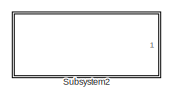
[diagram: root canvas - part 1/2, top right region]
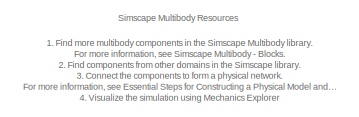
[diagram: root canvas - part 2/2, bottom left region]
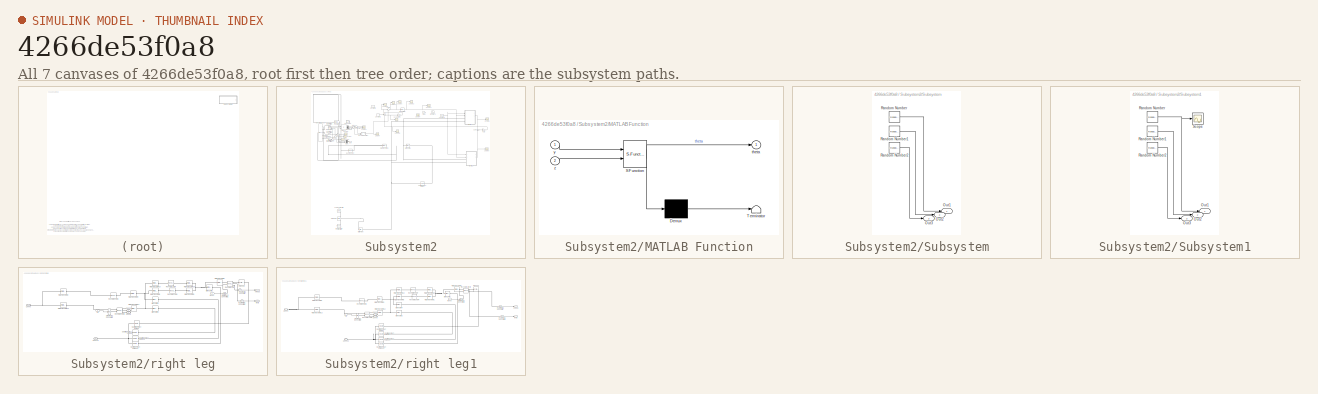
[diagram: thumbnail index - all 7 canvases of the model, root first then tree order]
MODEL slx_4266de53f0a8
KIND model
CONFIG AbsTol = 1e-3
CONFIG EnableMultiTasking = on
CONFIG FixedStep = auto
CONFIG MaxStep = auto
CONFIG MinStep = auto
CONFIG RelTol = 1e-3
CONFIG SampleTimeConstraint = Unconstrained
CONFIG SolverName = VariableStepAuto
CONFIG StartTime = 0.0
CONFIG StopTime = 5
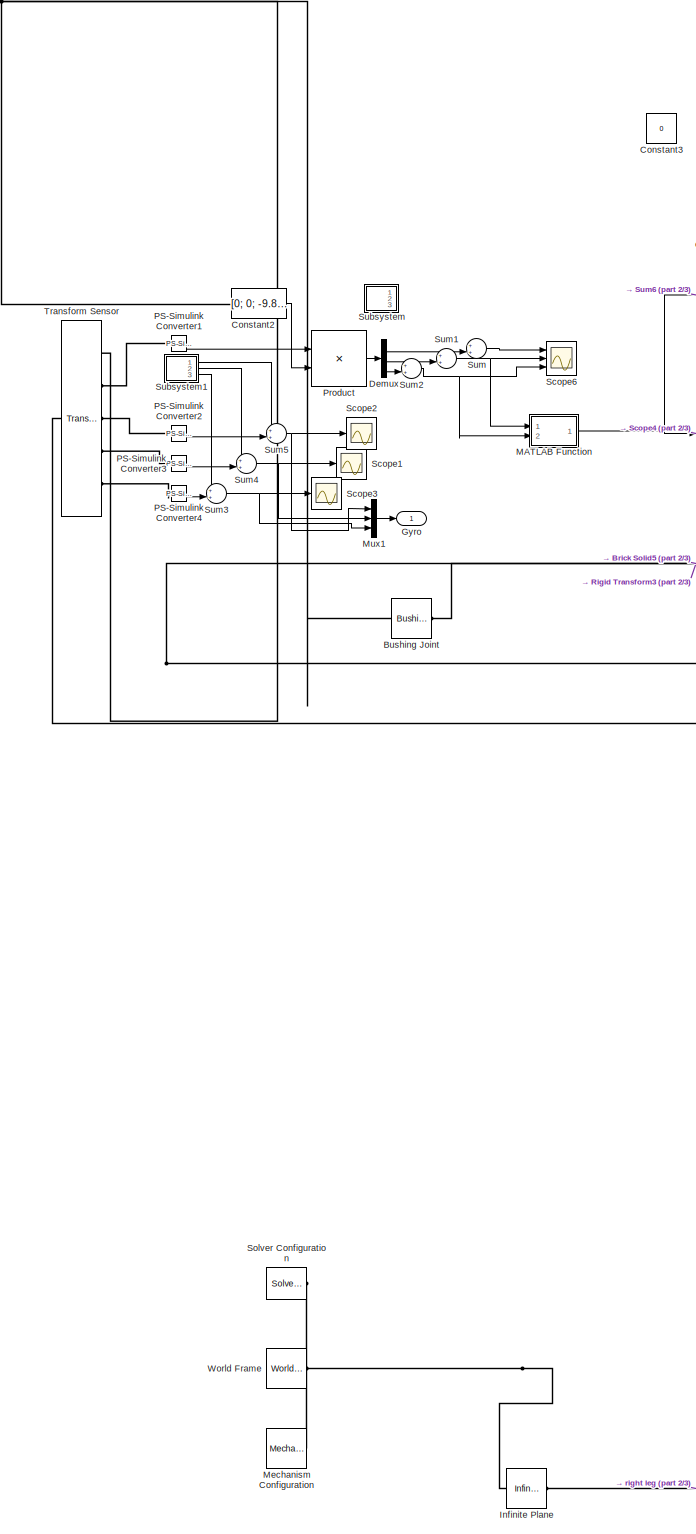
[diagram: Subsystem2 - part 1/3, left side, full height]
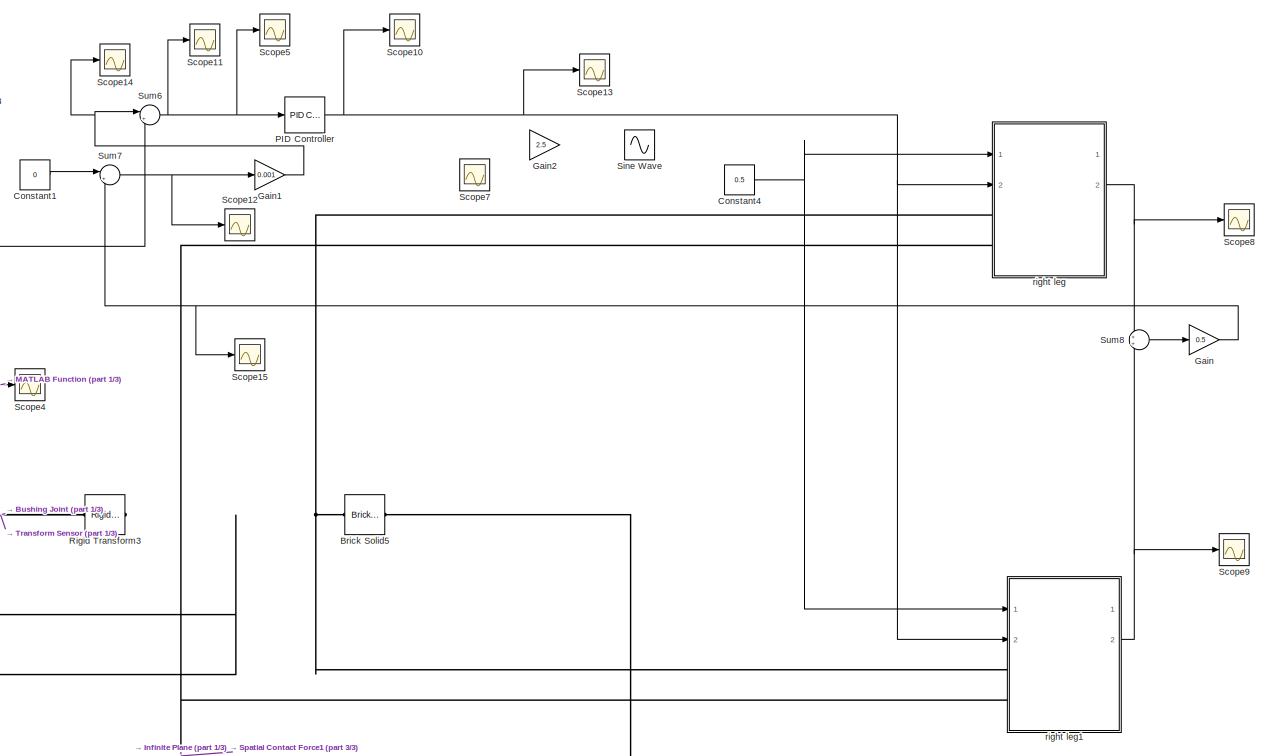
[diagram: Subsystem2 - part 2/3, top right region]
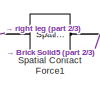
[diagram: Subsystem2 - part 3/3, central region]
BLOCK [SubSystem] Subsystem2
  Ports = [0, 1]
  RequestExecContextInheritance = off
BLOCK [Reference] Subsystem2/Brick Solid5  REF=sm_lib/Body Elements/Brick Solid
  NameLocation = top
  Ports = [0, 0, 0, 0, 0, 1, 1]
  SourceBlock = sm_lib/Body Elements/Brick Solid
  SourceProductBaseCode = MS
  SourceType = Brick Solid
BLOCK [Reference] Subsystem2/Bushing Joint  REF=sm_lib/Joints/Bushing Joint
  Ports = [0, 0, 0, 0, 0, 1, 1]
  SourceBlock = sm_lib/Joints/Bushing Joint
  SourceProductBaseCode = MS
  SourceType = Bushing Joint
BLOCK [Constant] Subsystem2/Constant1
  Value = 0
BLOCK [Constant] Subsystem2/Constant2
  Value = [0; 0; -9.80665]
  VectorParams1D = off
BLOCK [Constant] Subsystem2/Constant3
  Value = 0
BLOCK [Constant] Subsystem2/Constant4
  Value = 0.5
BLOCK [Demux] Subsystem2/Demux
  Outputs = 3
  Ports = [1, 3]
BLOCK [Gain] Subsystem2/Gain
  Gain = 0.5
BLOCK [Gain] Subsystem2/Gain1
  Gain = 0.001
BLOCK [Gain] Subsystem2/Gain2
  Gain = 2.5
BLOCK [Outport] Subsystem2/Gyro
BLOCK [Reference] Subsystem2/Infinite Plane  REF=sm_lib/Curves and Surfaces/Infinite Plane
  Ports = [0, 0, 0, 0, 0, 1, 1]
  SourceBlock = sm_lib/Curves and Surfaces/Infinite Plane
  SourceProductBaseCode = MS
  SourceType = Infinite Plane
BLOCK [SubSystem] Subsystem2/MATLAB Function
  ErrorFcn = Stateflow.Translate.translate
  PermitHierarchicalResolution = ExplicitOnly
  Ports = [2, 1]
  RequestExecContextInheritance = off
  SFBlockType = MATLAB Function
  TreatAsAtomicUnit = on
BLOCK [Demux] Subsystem2/MATLAB Function/ Demux 
  Outputs = 1
  Ports = [1, 1]
BLOCK [S-Function] Subsystem2/MATLAB Function/ SFunction 
  EnableBusSupport = on
  FunctionName = sf_sfun
  PortCounts = [2 2]
  Ports = [2, 2]
  SFcnIsStateOwnerBlock = off
  SFunctionDeploymentMode = off
  Tag = Stateflow S-Function 2
BLOCK [Terminator] Subsystem2/MATLAB Function/ Terminator 
BLOCK [Outport] Subsystem2/MATLAB Function/theta
BLOCK [Inport] Subsystem2/MATLAB Function/y
BLOCK [Inport] Subsystem2/MATLAB Function/z
  Port = 2
BLOCK [Reference] Subsystem2/Mechanism Configuration  REF=sm_lib/Utilities/Mechanism
Configuration
  Ports = [0, 0, 0, 0, 0, 0, 1]
  SourceBlock = sm_lib/Utilities/Mechanism\nConfiguration
  SourceProductName = Multibody
  SourceType = Mechanism\nConfiguration
BLOCK [Mux] Subsystem2/Mux1
  DisplayOption = bar
  Inputs = 3
  Ports = [3, 1]
BLOCK [Reference] Subsystem2/PID Controller  REF=slpidlib/PID Controller
  Ports = [1, 1]
  SourceBlock = slpidlib/PID Controller
  SourceProductBaseCode = SL
  SourceType = PID 1dof
BLOCK [Reference] Subsystem2/PS-Simulink Converter1  REF=nesl_utility/PS-Simulink
Converter
  Ports = [0, 1, 0, 0, 0, 1]
  SourceBlock = nesl_utility/PS-Simulink\nConverter
  SourceProductBaseCode = PW,SS
  SourceType = PS-Simulink\nConverter
BLOCK [Reference] Subsystem2/PS-Simulink Converter2  REF=nesl_utility/PS-Simulink
Converter
  Ports = [0, 1, 0, 0, 0, 1]
  SourceBlock = nesl_utility/PS-Simulink\nConverter
  SourceProductBaseCode = PW,SS
  SourceType = PS-Simulink\nConverter
BLOCK [Reference] Subsystem2/PS-Simulink Converter3  REF=nesl_utility/PS-Simulink
Converter
  Ports = [0, 1, 0, 0, 0, 1]
  SourceBlock = nesl_utility/PS-Simulink\nConverter
  SourceProductBaseCode = PW,SS
  SourceType = PS-Simulink\nConverter
BLOCK [Reference] Subsystem2/PS-Simulink Converter4  REF=nesl_utility/PS-Simulink
Converter
  Ports = [0, 1, 0, 0, 0, 1]
  SourceBlock = nesl_utility/PS-Simulink\nConverter
  SourceProductBaseCode = PW,SS
  SourceType = PS-Simulink\nConverter
BLOCK [Product] Subsystem2/Product
  Multiplication = Matrix(*)
  Ports = [2, 1]
BLOCK [Reference] Subsystem2/Rigid Transform3  REF=sm_lib/Frames and
Transforms/Rigid
Transform
  Ports = [0, 0, 0, 0, 0, 1, 1]
  SourceBlock = sm_lib/Frames and\nTransforms/Rigid\nTransform
  SourceProductName = Multibody
  SourceType = Rigid\nTransform
BLOCK [Scope] Subsystem2/Scope1
  Floating = off
  NumInputPorts = 1
  Ports = [1]
  ScopeSpecificationString = Simulink.scopes.TimeScopeBlockCfg('CurrentConfiguration', extmgr.ConfigurationSet(extmgr.Configuration('Core','General UI',true),extmgr.Configuration('Core','Source UI',true),extmgr.Configuration('Sources','WiredSimulink',true),extmgr.Configuration('Visuals','Time Domain',true,'SerializedDisplays',{struct('MinYLimReal','-0.84416','MaxYLimReal','0.59431','YLabelReal','','MinYLimMag','0.00000','MaxY...<+1368ch>
BLOCK [Scope] Subsystem2/Scope10
  Floating = off
  NumInputPorts = 1
  Ports = [1]
  ScopeSpecificationString = Simulink.scopes.TimeScopeBlockCfg('CurrentConfiguration', extmgr.ConfigurationSet(extmgr.Configuration('Core','General UI',true),extmgr.Configuration('Core','Source UI',true),extmgr.Configuration('Sources','WiredSimulink',true,'DataLoggingVariableName','ScopeData3'),extmgr.Configuration('Visuals','Time Domain',true,'SerializedDisplays',{struct('MinYLimReal','-796.12875','MaxYLimReal','800.49413','...<+1462ch>
BLOCK [Scope] Subsystem2/Scope11
  Floating = off
  NumInputPorts = 1
  Ports = [1]
  ScopeSpecificationString = Simulink.scopes.TimeScopeBlockCfg('CurrentConfiguration', extmgr.ConfigurationSet(extmgr.Configuration('Core','General UI',true),extmgr.Configuration('Core','Source UI',true),extmgr.Configuration('Sources','WiredSimulink',true,'DataLoggingVariableName','ScopeData4'),extmgr.Configuration('Visuals','Time Domain',true,'SerializedDisplays',{struct('MinYLimReal','-178.67671','MaxYLimReal','225.55631','...<+1454ch>
BLOCK [Scope] Subsystem2/Scope12
  Floating = off
  NumInputPorts = 1
  Ports = [1]
  ScopeSpecificationString = Simulink.scopes.TimeScopeBlockCfg('CurrentConfiguration', extmgr.ConfigurationSet(extmgr.Configuration('Core','General UI',true),extmgr.Configuration('Core','Source UI',true),extmgr.Configuration('Sources','WiredSimulink',true,'DataLoggingVariableName','ScopeData5'),extmgr.Configuration('Visuals','Time Domain',true,'SerializedDisplays',{struct('MinYLimReal','-0.01764','MaxYLimReal','0.15064','YLab...<+1437ch>
BLOCK [Scope] Subsystem2/Scope13
  Floating = off
  NumInputPorts = 1
  Ports = [1]
  ScopeSpecificationString = Simulink.scopes.TimeScopeBlockCfg('CurrentConfiguration', extmgr.ConfigurationSet(extmgr.Configuration('Core','General UI',true),extmgr.Configuration('Core','Source UI',true),extmgr.Configuration('Sources','WiredSimulink',true,'DataLoggingVariableName','ScopeData6'),extmgr.Configuration('Visuals','Time Domain',true,'SerializedDisplays',{struct('MinYLimReal','-796.12875','MaxYLimReal','800.49413','...<+1462ch>
BLOCK [Scope] Subsystem2/Scope14
  Floating = off
  NumInputPorts = 1
  Ports = [1]
  ScopeSpecificationString = Simulink.scopes.TimeScopeBlockCfg('CurrentConfiguration', extmgr.ConfigurationSet(extmgr.Configuration('Core','General UI',true),extmgr.Configuration('Core','Source UI',true),extmgr.Configuration('Sources','WiredSimulink',true,'DataLoggingVariableName','ScopeData1'),extmgr.Configuration('Visuals','Time Domain',true,'SerializedDisplays',{struct('MinYLimReal','-0.00435','MaxYLimReal','0.03915','YLab...<+1502ch>
BLOCK [Scope] Subsystem2/Scope15
  Floating = off
  NumInputPorts = 1
  Ports = [1]
  ScopeSpecificationString = Simulink.scopes.TimeScopeBlockCfg('CurrentConfiguration', extmgr.ConfigurationSet(extmgr.Configuration('Core','General UI',true),extmgr.Configuration('Core','Source UI',true),extmgr.Configuration('Sources','WiredSimulink',true,'DataLoggingVariableName','ScopeData2'),extmgr.Configuration('Visuals','Time Domain',true,'SerializedDisplays',{struct('MinYLimReal','-13.68641','MaxYLimReal','1.78855','YLa...<+1439ch>
BLOCK [Scope] Subsystem2/Scope2
  Floating = off
  NumInputPorts = 1
  Ports = [1]
  ScopeSpecificationString = Simulink.scopes.TimeScopeBlockCfg('CurrentConfiguration', extmgr.ConfigurationSet(extmgr.Configuration('Core','General UI',true),extmgr.Configuration('Core','Source UI',true),extmgr.Configuration('Sources','WiredSimulink',true,'DataLoggingVariableName','ScopeData2'),extmgr.Configuration('Visuals','Time Domain',true,'SerializedDisplays',{struct('MinYLimReal','-13.67707','MaxYLimReal','6.95519','YLa...<+1411ch>
BLOCK [Scope] Subsystem2/Scope3
  Floating = off
  NumInputPorts = 1
  Ports = [1]
  ScopeSpecificationString = Simulink.scopes.TimeScopeBlockCfg('CurrentConfiguration', extmgr.ConfigurationSet(extmgr.Configuration('Core','General UI',true),extmgr.Configuration('Core','Source UI',true),extmgr.Configuration('Sources','WiredSimulink',true,'DataLoggingVariableName','ScopeData3'),extmgr.Configuration('Visuals','Time Domain',true,'SerializedDisplays',{struct('MinYLimReal','-0.18495','MaxYLimReal','0.22005','YLab...<+1407ch>
BLOCK [Scope] Subsystem2/Scope4
  Floating = off
  NumInputPorts = 1
  Ports = [1]
  ScopeSpecificationString = Simulink.scopes.TimeScopeBlockCfg('CurrentConfiguration', extmgr.ConfigurationSet(extmgr.Configuration('Core','General UI',true),extmgr.Configuration('Core','Source UI',true),extmgr.Configuration('Sources','WiredSimulink',true,'DataLoggingVariableName','ScopeData1'),extmgr.Configuration('Visuals','Time Domain',true,'SerializedDisplays',{struct('MinYLimReal','-0.00088','MaxYLimReal','0.00593','YLab...<+1451ch>
BLOCK [Scope] Subsystem2/Scope5
  Floating = off
  NumInputPorts = 1
  Ports = [1]
  ScopeSpecificationString = Simulink.scopes.TimeScopeBlockCfg('CurrentConfiguration', extmgr.ConfigurationSet(extmgr.Configuration('Core','General UI',true),extmgr.Configuration('Core','Source UI',true),extmgr.Configuration('Sources','WiredSimulink',true,'DataLoggingVariableName','ScopeData2'),extmgr.Configuration('Visuals','Time Domain',true,'SerializedDisplays',{struct('MinYLimReal','-112.5','MaxYLimReal','112.5','YLabelRe...<+1425ch>
BLOCK [Scope] Subsystem2/Scope6
  Floating = off
  NumInputPorts = 3
  Ports = [3]
  ScopeSpecificationString = Simulink.scopes.TimeScopeBlockCfg('CurrentConfiguration', extmgr.ConfigurationSet(extmgr.Configuration('Core','General UI',true),extmgr.Configuration('Core','Source UI',true),extmgr.Configuration('Sources','WiredSimulink',true,'DataLoggingVariableName','ScopeData6'),extmgr.Configuration('Visuals','Time Domain',true,'SerializedDisplays',{struct('MinYLimReal','-7.99671','MaxYLimReal','7.77222','YLab...<+2710ch>
BLOCK [Scope] Subsystem2/Scope7
  Floating = off
  NumInputPorts = 1
  Ports = [1]
  ScopeSpecificationString = Simulink.scopes.TimeScopeBlockCfg('CurrentConfiguration', extmgr.ConfigurationSet(extmgr.Configuration('Core','General UI',true),extmgr.Configuration('Core','Source UI',true),extmgr.Configuration('Sources','WiredSimulink',true,'DataLoggingVariableName','ScopeData3'),extmgr.Configuration('Visuals','Time Domain',true,'SerializedDisplays',{struct('MinYLimReal','-3.85354','MaxYLimReal','34.68189','YLa...<+1477ch>
BLOCK [Scope] Subsystem2/Scope8
  Floating = off
  NumInputPorts = 1
  Ports = [1]
  ScopeSpecificationString = Simulink.scopes.TimeScopeBlockCfg('CurrentConfiguration', extmgr.ConfigurationSet(extmgr.Configuration('Core','General UI',true),extmgr.Configuration('Core','Source UI',true),extmgr.Configuration('Sources','WiredSimulink',true,'DataLoggingVariableName','ScopeData1'),extmgr.Configuration('Visuals','Time Domain',true,'SerializedDisplays',{struct('MinYLimReal','-95.91368','MaxYLimReal','836.96542','Y...<+1456ch>
BLOCK [Scope] Subsystem2/Scope9
  Floating = off
  NumInputPorts = 1
  Ports = [1]
  ScopeSpecificationString = Simulink.scopes.TimeScopeBlockCfg('CurrentConfiguration', extmgr.ConfigurationSet(extmgr.Configuration('Core','General UI',true),extmgr.Configuration('Core','Source UI',true),extmgr.Configuration('Sources','WiredSimulink',true,'DataLoggingVariableName','ScopeData2'),extmgr.Configuration('Visuals','Time Domain',true,'SerializedDisplays',{struct('MinYLimReal','-96.58428','MaxYLimReal','843.00032','Y...<+1457ch>
BLOCK [Sin] Subsystem2/Sine Wave
  Frequency = 2*pi
  Ports = [0, 1]
  SampleTime = 0
BLOCK [Reference] Subsystem2/Solver Configuration  REF=nesl_utility/Solver
Configuration
  Ports = [0, 0, 0, 0, 0, 0, 1]
  SourceBlock = nesl_utility/Solver\nConfiguration
  SourceProductName = Utilities
  SourceType = Solver\nConfiguration
BLOCK [Reference] Subsystem2/Spatial Contact Force1  REF=sm_lib/Forces and
Torques/Spatial
Contact Force
  Ports = [0, 0, 0, 0, 0, 1, 1]
  SourceBlock = sm_lib/Forces and\nTorques/Spatial\nContact Force
  SourceProductBaseCode = MS
  SourceType = Spatial\nContact Force
BLOCK [SubSystem] Subsystem2/Subsystem
  Ports = [0, 3]
  RequestExecContextInheritance = off
BLOCK [Outport] Subsystem2/Subsystem/Out1
BLOCK [Outport] Subsystem2/Subsystem/Out2
  Port = 2
BLOCK [Outport] Subsystem2/Subsystem/Out3
  Port = 3
BLOCK [RandomNumber] Subsystem2/Subsystem/Random Number
  SampleTime = 0.001
  Seed = 1
  Variance = 0.00001
BLOCK [RandomNumber] Subsystem2/Subsystem/Random Number1
  SampleTime = 0.001
  Seed = 2
  Variance = 0.00001
BLOCK [RandomNumber] Subsystem2/Subsystem/Random Number2
  SampleTime = 0.001
  Seed = 3
  Variance = 0.00001
BLOCK [SubSystem] Subsystem2/Subsystem1
  Ports = [0, 3]
  RequestExecContextInheritance = off
BLOCK [Outport] Subsystem2/Subsystem1/Out1
BLOCK [Outport] Subsystem2/Subsystem1/Out2
  Port = 2
BLOCK [Outport] Subsystem2/Subsystem1/Out3
  Port = 3
BLOCK [RandomNumber] Subsystem2/Subsystem1/Random Number
  SampleTime = 0.001
  Seed = 5
  Variance = 0.001
BLOCK [RandomNumber] Subsystem2/Subsystem1/Random Number1
  SampleTime = 0.001
  Seed = 4
  Variance = 0.001
BLOCK [RandomNumber] Subsystem2/Subsystem1/Random Number2
  SampleTime = 0.001
  Seed = 6
  Variance = 0.001
BLOCK [Scope] Subsystem2/Subsystem1/Scope
  Floating = off
  NumInputPorts = 1
  Ports = [1]
  ScopeSpecificationString = Simulink.scopes.TimeScopeBlockCfg('CurrentConfiguration', extmgr.ConfigurationSet(extmgr.Configuration('Core','General UI',true),extmgr.Configuration('Core','Source UI',true),extmgr.Configuration('Sources','WiredSimulink',true,'DataLoggingVariableName','ScopeData1'),extmgr.Configuration('Visuals','Time Domain',true,'SerializedDisplays',{struct('MinYLimReal','-0.17125','MaxYLimReal','0.15582','YLab...<+1372ch>
BLOCK [Sum] Subsystem2/Sum
  Inputs = ++|
  Ports = [2, 1]
BLOCK [Sum] Subsystem2/Sum1
  Inputs = ++|
  Ports = [2, 1]
BLOCK [Sum] Subsystem2/Sum2
  Inputs = ++|
  Ports = [2, 1]
BLOCK [Sum] Subsystem2/Sum3
  Inputs = ++|
  Ports = [2, 1]
BLOCK [Sum] Subsystem2/Sum4
  Inputs = ++|
  Ports = [2, 1]
BLOCK [Sum] Subsystem2/Sum5
  Inputs = ++|
  Ports = [2, 1]
BLOCK [Sum] Subsystem2/Sum6
  Inputs = |+-
  Ports = [2, 1]
BLOCK [Sum] Subsystem2/Sum7
  Inputs = |+-
  Ports = [2, 1]
BLOCK [Sum] Subsystem2/Sum8
  Ports = [2, 1]
BLOCK [Reference] Subsystem2/Transform Sensor  REF=sm_lib/Frames and
Transforms/Transform
Sensor
  Ports = [0, 0, 0, 0, 0, 1, 5]
  SourceBlock = sm_lib/Frames and\nTransforms/Transform\nSensor
  SourceProductBaseCode = MS
  SourceType = Transform\nSensor
BLOCK [Reference] Subsystem2/World Frame  REF=sm_lib/Frames and
Transforms/World Frame
  Ports = [0, 0, 0, 0, 0, 0, 1]
  SourceBlock = sm_lib/Frames and\nTransforms/World Frame
  SourceProductName = Multibody
  SourceType = World Frame
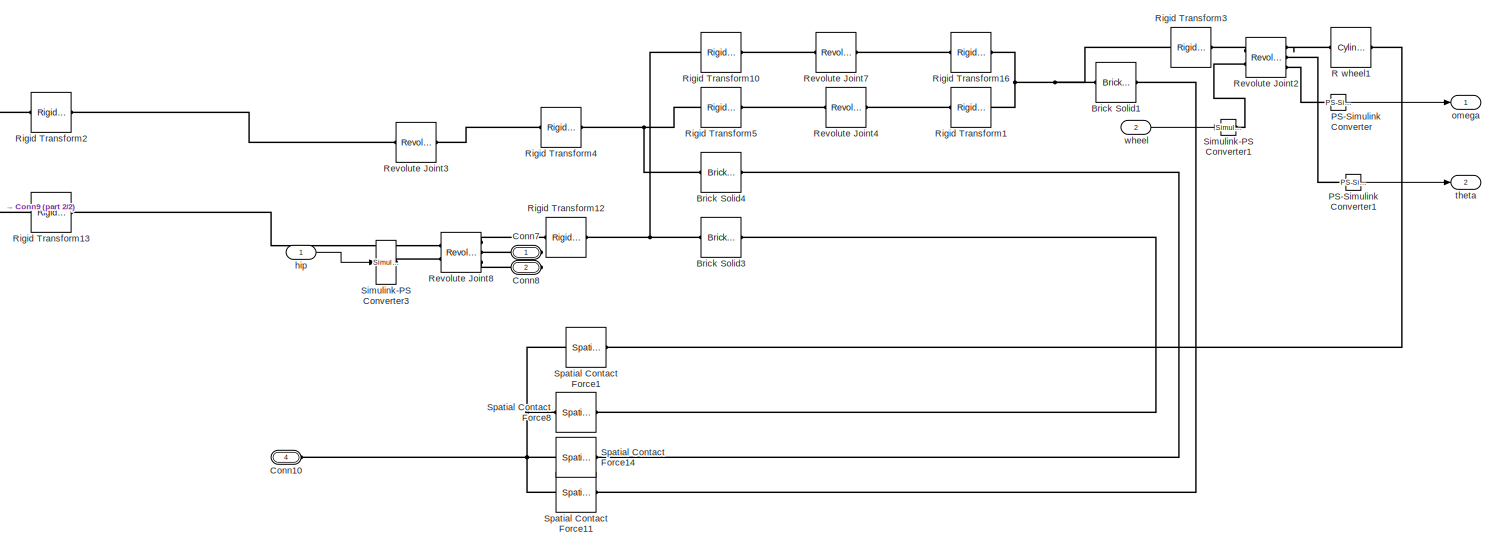
[diagram: Subsystem2/right leg - part 1/2, most of the canvas]
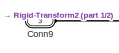
[diagram: Subsystem2/right leg - part 2/2, middle left region]
BLOCK [SubSystem] Subsystem2/right leg
  Ports = [2, 2, 0, 0, 0, 2, 2]
  RequestExecContextInheritance = off
BLOCK [Reference] Subsystem2/right leg/Brick Solid1  REF=sm_lib/Body Elements/Brick Solid
  NameLocation = top
  Ports = [0, 0, 0, 0, 0, 1, 1]
  SourceBlock = sm_lib/Body Elements/Brick Solid
  SourceProductBaseCode = MS
  SourceType = Brick Solid
BLOCK [Reference] Subsystem2/right leg/Brick Solid3  REF=sm_lib/Body Elements/Brick Solid
  NameLocation = top
  Ports = [0, 0, 0, 0, 0, 1, 1]
  SourceBlock = sm_lib/Body Elements/Brick Solid
  SourceProductBaseCode = MS
  SourceType = Brick Solid
BLOCK [Reference] Subsystem2/right leg/Brick Solid4  REF=sm_lib/Body Elements/Brick Solid
  NameLocation = top
  Ports = [0, 0, 0, 0, 0, 1, 1]
  SourceBlock = sm_lib/Body Elements/Brick Solid
  SourceProductBaseCode = MS
  SourceType = Brick Solid
BLOCK [PMIOPort] Subsystem2/right leg/Conn10
  Port = 4
  Side = Left
BLOCK [PMIOPort] Subsystem2/right leg/Conn7
  Side = Right
BLOCK [PMIOPort] Subsystem2/right leg/Conn8
  Port = 2
  Side = Right
BLOCK [PMIOPort] Subsystem2/right leg/Conn9
  Port = 3
  Side = Left
BLOCK [Reference] Subsystem2/right leg/PS-Simulink Converter  REF=nesl_utility/PS-Simulink
Converter
  Ports = [0, 1, 0, 0, 0, 1]
  SourceBlock = nesl_utility/PS-Simulink\nConverter
  SourceProductBaseCode = PW,SS
  SourceType = PS-Simulink\nConverter
BLOCK [Reference] Subsystem2/right leg/PS-Simulink Converter1  REF=nesl_utility/PS-Simulink
Converter
  Ports = [0, 1, 0, 0, 0, 1]
  SourceBlock = nesl_utility/PS-Simulink\nConverter
  SourceProductBaseCode = PW,SS
  SourceType = PS-Simulink\nConverter
BLOCK [Reference] Subsystem2/right leg/R wheel1  REF=sm_lib/Body Elements/Cylindrical Solid
  NameLocation = top
  Ports = [0, 0, 0, 0, 0, 1, 1]
  SourceBlock = sm_lib/Body Elements/Cylindrical Solid
  SourceProductBaseCode = MS
  SourceType = Cylindrical Solid
BLOCK [Reference] Subsystem2/right leg/Revolute Joint2  REF=sm_lib/Joints/Revolute Joint
  Ports = [0, 0, 0, 0, 0, 2, 3]
  SourceBlock = sm_lib/Joints/Revolute Joint
  SourceProductBaseCode = MS
  SourceType = Revolute Joint
BLOCK [Reference] Subsystem2/right leg/Revolute Joint3  REF=sm_lib/Joints/Revolute Joint
  Ports = [0, 0, 0, 0, 0, 1, 1]
  SourceBlock = sm_lib/Joints/Revolute Joint
  SourceProductBaseCode = MS
  SourceType = Revolute Joint
BLOCK [Reference] Subsystem2/right leg/Revolute Joint4  REF=sm_lib/Joints/Revolute Joint
  Ports = [0, 0, 0, 0, 0, 1, 1]
  SourceBlock = sm_lib/Joints/Revolute Joint
  SourceProductBaseCode = MS
  SourceType = Revolute Joint
BLOCK [Reference] Subsystem2/right leg/Revolute Joint7  REF=sm_lib/Joints/Revolute Joint
  Ports = [0, 0, 0, 0, 0, 1, 1]
  SourceBlock = sm_lib/Joints/Revolute Joint
  SourceProductBaseCode = MS
  SourceType = Revolute Joint
BLOCK [Reference] Subsystem2/right leg/Revolute Joint8  REF=sm_lib/Joints/Revolute Joint
  Ports = [0, 0, 0, 0, 0, 2, 3]
  SourceBlock = sm_lib/Joints/Revolute Joint
  SourceProductBaseCode = MS
  SourceType = Revolute Joint
BLOCK [Reference] Subsystem2/right leg/Rigid Transform1  REF=sm_lib/Frames and
Transforms/Rigid
Transform
  NameLocation = top
  Ports = [0, 0, 0, 0, 0, 1, 1]
  SourceBlock = sm_lib/Frames and\nTransforms/Rigid\nTransform
  SourceProductName = Multibody
  SourceType = Rigid\nTransform
BLOCK [Reference] Subsystem2/right leg/Rigid Transform10  REF=sm_lib/Frames and
Transforms/Rigid
Transform
  Ports = [0, 0, 0, 0, 0, 1, 1]
  SourceBlock = sm_lib/Frames and\nTransforms/Rigid\nTransform
  SourceProductName = Multibody
  SourceType = Rigid\nTransform
BLOCK [Reference] Subsystem2/right leg/Rigid Transform12  REF=sm_lib/Frames and
Transforms/Rigid
Transform
  NameLocation = top
  Ports = [0, 0, 0, 0, 0, 1, 1]
  SourceBlock = sm_lib/Frames and\nTransforms/Rigid\nTransform
  SourceProductName = Multibody
  SourceType = Rigid\nTransform
BLOCK [Reference] Subsystem2/right leg/Rigid Transform13  REF=sm_lib/Frames and
Transforms/Rigid
Transform
  Ports = [0, 0, 0, 0, 0, 1, 1]
  SourceBlock = sm_lib/Frames and\nTransforms/Rigid\nTransform
  SourceProductName = Multibody
  SourceType = Rigid\nTransform
BLOCK [Reference] Subsystem2/right leg/Rigid Transform16  REF=sm_lib/Frames and
Transforms/Rigid
Transform
  NameLocation = top
  Ports = [0, 0, 0, 0, 0, 1, 1]
  SourceBlock = sm_lib/Frames and\nTransforms/Rigid\nTransform
  SourceProductName = Multibody
  SourceType = Rigid\nTransform
BLOCK [Reference] Subsystem2/right leg/Rigid Transform2  REF=sm_lib/Frames and
Transforms/Rigid
Transform
  Ports = [0, 0, 0, 0, 0, 1, 1]
  SourceBlock = sm_lib/Frames and\nTransforms/Rigid\nTransform
  SourceProductName = Multibody
  SourceType = Rigid\nTransform
BLOCK [Reference] Subsystem2/right leg/Rigid Transform3  REF=sm_lib/Frames and
Transforms/Rigid
Transform
  Ports = [0, 0, 0, 0, 0, 1, 1]
  SourceBlock = sm_lib/Frames and\nTransforms/Rigid\nTransform
  SourceProductName = Multibody
  SourceType = Rigid\nTransform
BLOCK [Reference] Subsystem2/right leg/Rigid Transform4  REF=sm_lib/Frames and
Transforms/Rigid
Transform
  NameLocation = top
  Ports = [0, 0, 0, 0, 0, 1, 1]
  SourceBlock = sm_lib/Frames and\nTransforms/Rigid\nTransform
  SourceProductName = Multibody
  SourceType = Rigid\nTransform
BLOCK [Reference] Subsystem2/right leg/Rigid Transform5  REF=sm_lib/Frames and
Transforms/Rigid
Transform
  Ports = [0, 0, 0, 0, 0, 1, 1]
  SourceBlock = sm_lib/Frames and\nTransforms/Rigid\nTransform
  SourceProductName = Multibody
  SourceType = Rigid\nTransform
BLOCK [Reference] Subsystem2/right leg/Simulink-PS Converter1  REF=nesl_utility/Simulink-PS
Converter
  Ports = [1, 0, 0, 0, 0, 0, 1]
  SourceBlock = nesl_utility/Simulink-PS\nConverter
  SourceProductName = Utilities
  SourceType = Simulink-PS\nConverter
BLOCK [Reference] Subsystem2/right leg/Simulink-PS Converter3  REF=nesl_utility/Simulink-PS
Converter
  Ports = [1, 0, 0, 0, 0, 0, 1]
  SourceBlock = nesl_utility/Simulink-PS\nConverter
  SourceProductName = Utilities
  SourceType = Simulink-PS\nConverter
BLOCK [Reference] Subsystem2/right leg/Spatial Contact Force1  REF=sm_lib/Forces and
Torques/Spatial
Contact Force
  Ports = [0, 0, 0, 0, 0, 1, 1]
  SourceBlock = sm_lib/Forces and\nTorques/Spatial\nContact Force
  SourceProductBaseCode = MS
  SourceType = Spatial\nContact Force
BLOCK [Reference] Subsystem2/right leg/Spatial Contact Force11  REF=sm_lib/Forces and
Torques/Spatial
Contact Force
  Ports = [0, 0, 0, 0, 0, 1, 1]
  SourceBlock = sm_lib/Forces and\nTorques/Spatial\nContact Force
  SourceProductBaseCode = MS
  SourceType = Spatial\nContact Force
BLOCK [Reference] Subsystem2/right leg/Spatial Contact Force14  REF=sm_lib/Forces and
Torques/Spatial
Contact Force
  Ports = [0, 0, 0, 0, 0, 1, 1]
  SourceBlock = sm_lib/Forces and\nTorques/Spatial\nContact Force
  SourceProductBaseCode = MS
  SourceType = Spatial\nContact Force
BLOCK [Reference] Subsystem2/right leg/Spatial Contact Force8  REF=sm_lib/Forces and
Torques/Spatial
Contact Force
  Ports = [0, 0, 0, 0, 0, 1, 1]
  SourceBlock = sm_lib/Forces and\nTorques/Spatial\nContact Force
  SourceProductBaseCode = MS
  SourceType = Spatial\nContact Force
BLOCK [Inport] Subsystem2/right leg/hip
BLOCK [Outport] Subsystem2/right leg/omega
BLOCK [Outport] Subsystem2/right leg/theta
  Port = 2
BLOCK [Inport] Subsystem2/right leg/wheel
  Port = 2
BLOCK [SubSystem] Subsystem2/right leg1
  Ports = [2, 2, 0, 0, 0, 2, 2]
  RequestExecContextInheritance = off
BLOCK [Reference] Subsystem2/right leg1/Brick Solid1  REF=sm_lib/Body Elements/Brick Solid
  NameLocation = top
  Ports = [0, 0, 0, 0, 0, 1, 1]
  SourceBlock = sm_lib/Body Elements/Brick Solid
  SourceProductBaseCode = MS
  SourceType = Brick Solid
BLOCK [Reference] Subsystem2/right leg1/Brick Solid3  REF=sm_lib/Body Elements/Brick Solid
  NameLocation = top
  Ports = [0, 0, 0, 0, 0, 1, 1]
  SourceBlock = sm_lib/Body Elements/Brick Solid
  SourceProductBaseCode = MS
  SourceType = Brick Solid
BLOCK [Reference] Subsystem2/right leg1/Brick Solid4  REF=sm_lib/Body Elements/Brick Solid
  NameLocation = top
  Ports = [0, 0, 0, 0, 0, 1, 1]
  SourceBlock = sm_lib/Body Elements/Brick Solid
  SourceProductBaseCode = MS
  SourceType = Brick Solid
BLOCK [PMIOPort] Subsystem2/right leg1/Conn10
  Port = 4
  Side = Left
BLOCK [PMIOPort] Subsystem2/right leg1/Conn7
  Side = Right
BLOCK [PMIOPort] Subsystem2/right leg1/Conn8
  Port = 2
  Side = Right
BLOCK [PMIOPort] Subsystem2/right leg1/Conn9
  Port = 3
  Side = Left
BLOCK [Reference] Subsystem2/right leg1/PS-Simulink Converter  REF=nesl_utility/PS-Simulink
Converter
  Ports = [0, 1, 0, 0, 0, 1]
  SourceBlock = nesl_utility/PS-Simulink\nConverter
  SourceProductBaseCode = PW,SS
  SourceType = PS-Simulink\nConverter
BLOCK [Reference] Subsystem2/right leg1/PS-Simulink Converter1  REF=nesl_utility/PS-Simulink
Converter
  Ports = [0, 1, 0, 0, 0, 1]
  SourceBlock = nesl_utility/PS-Simulink\nConverter
  SourceProductBaseCode = PW,SS
  SourceType = PS-Simulink\nConverter
BLOCK [Reference] Subsystem2/right leg1/R wheel1  REF=sm_lib/Body Elements/Cylindrical Solid
  NameLocation = top
  Ports = [0, 0, 0, 0, 0, 1, 1]
  SourceBlock = sm_lib/Body Elements/Cylindrical Solid
  SourceProductBaseCode = MS
  SourceType = Cylindrical Solid
BLOCK [Reference] Subsystem2/right leg1/Revolute Joint2  REF=sm_lib/Joints/Revolute Joint
  Ports = [0, 0, 0, 0, 0, 2, 3]
  SourceBlock = sm_lib/Joints/Revolute Joint
  SourceProductBaseCode = MS
  SourceType = Revolute Joint
BLOCK [Reference] Subsystem2/right leg1/Revolute Joint3  REF=sm_lib/Joints/Revolute Joint
  Ports = [0, 0, 0, 0, 0, 1, 1]
  SourceBlock = sm_lib/Joints/Revolute Joint
  SourceProductBaseCode = MS
  SourceType = Revolute Joint
BLOCK [Reference] Subsystem2/right leg1/Revolute Joint4  REF=sm_lib/Joints/Revolute Joint
  Ports = [0, 0, 0, 0, 0, 1, 1]
  SourceBlock = sm_lib/Joints/Revolute Joint
  SourceProductBaseCode = MS
  SourceType = Revolute Joint
BLOCK [Reference] Subsystem2/right leg1/Revolute Joint7  REF=sm_lib/Joints/Revolute Joint
  Ports = [0, 0, 0, 0, 0, 1, 1]
  SourceBlock = sm_lib/Joints/Revolute Joint
  SourceProductBaseCode = MS
  SourceType = Revolute Joint
BLOCK [Reference] Subsystem2/right leg1/Revolute Joint8  REF=sm_lib/Joints/Revolute Joint
  Ports = [0, 0, 0, 0, 0, 2, 3]
  SourceBlock = sm_lib/Joints/Revolute Joint
  SourceProductBaseCode = MS
  SourceType = Revolute Joint
BLOCK [Reference] Subsystem2/right leg1/Rigid Transform1  REF=sm_lib/Frames and
Transforms/Rigid
Transform
  NameLocation = top
  Ports = [0, 0, 0, 0, 0, 1, 1]
  SourceBlock = sm_lib/Frames and\nTransforms/Rigid\nTransform
  SourceProductName = Multibody
  SourceType = Rigid\nTransform
BLOCK [Reference] Subsystem2/right leg1/Rigid Transform10  REF=sm_lib/Frames and
Transforms/Rigid
Transform
  Ports = [0, 0, 0, 0, 0, 1, 1]
  SourceBlock = sm_lib/Frames and\nTransforms/Rigid\nTransform
  SourceProductName = Multibody
  SourceType = Rigid\nTransform
BLOCK [Reference] Subsystem2/right leg1/Rigid Transform12  REF=sm_lib/Frames and
Transforms/Rigid
Transform
  NameLocation = top
  Ports = [0, 0, 0, 0, 0, 1, 1]
  SourceBlock = sm_lib/Frames and\nTransforms/Rigid\nTransform
  SourceProductName = Multibody
  SourceType = Rigid\nTransform
BLOCK [Reference] Subsystem2/right leg1/Rigid Transform13  REF=sm_lib/Frames and
Transforms/Rigid
Transform
  Ports = [0, 0, 0, 0, 0, 1, 1]
  SourceBlock = sm_lib/Frames and\nTransforms/Rigid\nTransform
  SourceProductName = Multibody
  SourceType = Rigid\nTransform
BLOCK [Reference] Subsystem2/right leg1/Rigid Transform16  REF=sm_lib/Frames and
Transforms/Rigid
Transform
  NameLocation = top
  Ports = [0, 0, 0, 0, 0, 1, 1]
  SourceBlock = sm_lib/Frames and\nTransforms/Rigid\nTransform
  SourceProductName = Multibody
  SourceType = Rigid\nTransform
BLOCK [Reference] Subsystem2/right leg1/Rigid Transform2  REF=sm_lib/Frames and
Transforms/Rigid
Transform
  Ports = [0, 0, 0, 0, 0, 1, 1]
  SourceBlock = sm_lib/Frames and\nTransforms/Rigid\nTransform
  SourceProductName = Multibody
  SourceType = Rigid\nTransform
BLOCK [Reference] Subsystem2/right leg1/Rigid Transform3  REF=sm_lib/Frames and
Transforms/Rigid
Transform
  Ports = [0, 0, 0, 0, 0, 1, 1]
  SourceBlock = sm_lib/Frames and\nTransforms/Rigid\nTransform
  SourceProductName = Multibody
  SourceType = Rigid\nTransform
BLOCK [Reference] Subsystem2/right leg1/Rigid Transform4  REF=sm_lib/Frames and
Transforms/Rigid
Transform
  NameLocation = top
  Ports = [0, 0, 0, 0, 0, 1, 1]
  SourceBlock = sm_lib/Frames and\nTransforms/Rigid\nTransform
  SourceProductName = Multibody
  SourceType = Rigid\nTransform
BLOCK [Reference] Subsystem2/right leg1/Rigid Transform5  REF=sm_lib/Frames and
Transforms/Rigid
Transform
  Ports = [0, 0, 0, 0, 0, 1, 1]
  SourceBlock = sm_lib/Frames and\nTransforms/Rigid\nTransform
  SourceProductName = Multibody
  SourceType = Rigid\nTransform
BLOCK [Reference] Subsystem2/right leg1/Simulink-PS Converter1  REF=nesl_utility/Simulink-PS
Converter
  Ports = [1, 0, 0, 0, 0, 0, 1]
  SourceBlock = nesl_utility/Simulink-PS\nConverter
  SourceProductName = Utilities
  SourceType = Simulink-PS\nConverter
BLOCK [Reference] Subsystem2/right leg1/Simulink-PS Converter3  REF=nesl_utility/Simulink-PS
Converter
  Ports = [1, 0, 0, 0, 0, 0, 1]
  SourceBlock = nesl_utility/Simulink-PS\nConverter
  SourceProductName = Utilities
  SourceType = Simulink-PS\nConverter
BLOCK [Reference] Subsystem2/right leg1/Spatial Contact Force1  REF=sm_lib/Forces and
Torques/Spatial
Contact Force
  Ports = [0, 0, 0, 0, 0, 1, 1]
  SourceBlock = sm_lib/Forces and\nTorques/Spatial\nContact Force
  SourceProductBaseCode = MS
  SourceType = Spatial\nContact Force
BLOCK [Reference] Subsystem2/right leg1/Spatial Contact Force11  REF=sm_lib/Forces and
Torques/Spatial
Contact Force
  Ports = [0, 0, 0, 0, 0, 1, 1]
  SourceBlock = sm_lib/Forces and\nTorques/Spatial\nContact Force
  SourceProductBaseCode = MS
  SourceType = Spatial\nContact Force
BLOCK [Reference] Subsystem2/right leg1/Spatial Contact Force14  REF=sm_lib/Forces and
Torques/Spatial
Contact Force
  Ports = [0, 0, 0, 0, 0, 1, 1]
  SourceBlock = sm_lib/Forces and\nTorques/Spatial\nContact Force
  SourceProductBaseCode = MS
  SourceType = Spatial\nContact Force
BLOCK [Reference] Subsystem2/right leg1/Spatial Contact Force8  REF=sm_lib/Forces and
Torques/Spatial
Contact Force
  Ports = [0, 0, 0, 0, 0, 1, 1]
  SourceBlock = sm_lib/Forces and\nTorques/Spatial\nContact Force
  SourceProductBaseCode = MS
  SourceType = Spatial\nContact Force
BLOCK [Inport] Subsystem2/right leg1/hip
BLOCK [Outport] Subsystem2/right leg1/omega
BLOCK [Outport] Subsystem2/right leg1/theta
  Port = 2
BLOCK [Inport] Subsystem2/right leg1/wheel
  Port = 2
ANNOTATION (root): 1. Find more multibody components in the Simscape Multibody library . For more information, see Simscape Multibody - Blocks . 2. Find components from other domains in the Simscape library . 3. Connect the components to form a physical network. For more information, see Essential Steps for Constructing a Physical Model and Creating a Multibody Model . 4. Visualize the simulation using Mechanics Exp...<+52ch>
ANNOTATION (root): Simscape Multibody Resources
LINE Subsystem2/Constant1:1 -> Subsystem2/Sum7:1
LINE Subsystem2/Constant2:1 -> Subsystem2/Product:2
NET Subsystem2/Constant4:1 -> Subsystem2/right leg1:1, Subsystem2/right leg:1
LINE Subsystem2/Demux:1 -> Subsystem2/Sum:2
LINE Subsystem2/Demux:2 -> Subsystem2/Sum1:2
LINE Subsystem2/Demux:3 -> Subsystem2/Sum2:2
NET Subsystem2/Gain1:1 -> Subsystem2/Scope14:1, Subsystem2/Sum6:1
NET Subsystem2/Gain:1 -> Subsystem2/Scope15:1, Subsystem2/Sum7:2
NET Subsystem2/MATLAB Function:1 -> Subsystem2/Scope4:1, Subsystem2/Sum6:2
LINE Subsystem2/Mux1:1 -> Subsystem2/Gyro:1
NET Subsystem2/PID Controller:1 -> Subsystem2/Scope10:1, Subsystem2/Scope13:1, Subsystem2/right leg1:2, Subsystem2/right leg:2
LINE Subsystem2/PS-Simulink Converter1:1 -> Subsystem2/Product:1
LINE Subsystem2/PS-Simulink Converter2:1 -> Subsystem2/Sum5:2
LINE Subsystem2/PS-Simulink Converter3:1 -> Subsystem2/Sum4:2
LINE Subsystem2/PS-Simulink Converter4:1 -> Subsystem2/Sum3:2
LINE Subsystem2/Product:1 -> Subsystem2/Demux:1
LINE Subsystem2/Subsystem/Random Number1:1 -> Subsystem2/Subsystem/Out2:1
LINE Subsystem2/Subsystem/Random Number2:1 -> Subsystem2/Subsystem/Out3:1
LINE Subsystem2/Subsystem/Random Number:1 -> Subsystem2/Subsystem/Out1:1
LINE Subsystem2/Subsystem1/Random Number1:1 -> Subsystem2/Subsystem1/Out2:1
LINE Subsystem2/Subsystem1/Random Number2:1 -> Subsystem2/Subsystem1/Out3:1
NET Subsystem2/Subsystem1/Random Number:1 -> Subsystem2/Subsystem1/Out1:1, Subsystem2/Subsystem1/Scope:1
LINE Subsystem2/Subsystem1:1 -> Subsystem2/Sum5:1
LINE Subsystem2/Subsystem1:2 -> Subsystem2/Sum4:1
LINE Subsystem2/Subsystem1:3 -> Subsystem2/Sum3:1
NET Subsystem2/Sum1:1 -> Subsystem2/MATLAB Function:1, Subsystem2/Scope6:2
NET Subsystem2/Sum2:1 -> Subsystem2/MATLAB Function:2, Subsystem2/Scope6:3
NET Subsystem2/Sum3:1 -> Subsystem2/Mux1:3, Subsystem2/Scope3:1
NET Subsystem2/Sum4:1 -> Subsystem2/Mux1:2, Subsystem2/Scope1:1
NET Subsystem2/Sum5:1 -> Subsystem2/Mux1:1, Subsystem2/Scope2:1
NET Subsystem2/Sum6:1 -> Subsystem2/PID Controller:1, Subsystem2/Scope11:1, Subsystem2/Scope5:1
NET Subsystem2/Sum7:1 -> Subsystem2/Gain1:1, Subsystem2/Scope12:1
LINE Subsystem2/Sum8:1 -> Subsystem2/Gain:1
LINE Subsystem2/Sum:1 -> Subsystem2/Scope6:1
LINE Subsystem2/right leg/PS-Simulink Converter1:1 -> Subsystem2/right leg/theta:1
LINE Subsystem2/right leg/PS-Simulink Converter:1 -> Subsystem2/right leg/omega:1
LINE Subsystem2/right leg/hip:1 -> Subsystem2/right leg/Simulink-PS Converter3:1
LINE Subsystem2/right leg/wheel:1 -> Subsystem2/right leg/Simulink-PS Converter1:1
LINE Subsystem2/right leg1/PS-Simulink Converter1:1 -> Subsystem2/right leg1/theta:1
LINE Subsystem2/right leg1/PS-Simulink Converter:1 -> Subsystem2/right leg1/omega:1
LINE Subsystem2/right leg1/hip:1 -> Subsystem2/right leg1/Simulink-PS Converter3:1
LINE Subsystem2/right leg1/wheel:1 -> Subsystem2/right leg1/Simulink-PS Converter1:1
NET Subsystem2/right leg1:2 -> Subsystem2/Scope9:1, Subsystem2/Sum8:2
NET Subsystem2/right leg:2 -> Subsystem2/Scope8:1, Subsystem2/Sum8:1
PLINE Subsystem2/Brick Solid5:LConn1 -- Subsystem2/Spatial Contact Force1:RConn1
PNET net1: Subsystem2/Brick Solid5:RConn1 -- Subsystem2/Rigid Transform3:RConn1 -- Subsystem2/Transform Sensor:LConn1 -- Subsystem2/right leg1:LConn1 -- Subsystem2/right leg:LConn1
PNET net2: Subsystem2/Bushing Joint:LConn1 -- Subsystem2/Infinite Plane:LConn1 -- Subsystem2/Mechanism Configuration:RConn1 -- Subsystem2/Solver Configuration:RConn1 -- Subsystem2/Transform Sensor:RConn1 -- Subsystem2/World Frame:RConn1
PLINE Subsystem2/Bushing Joint:RConn1 -- Subsystem2/Rigid Transform3:LConn1
PNET net3: Subsystem2/Infinite Plane:RConn1 -- Subsystem2/Spatial Contact Force1:LConn1 -- Subsystem2/right leg1:LConn2 -- Subsystem2/right leg:LConn2
PLINE Subsystem2/PS-Simulink Converter1:LConn1 -- Subsystem2/Transform Sensor:RConn2
PLINE Subsystem2/PS-Simulink Converter2:LConn1 -- Subsystem2/Transform Sensor:RConn3
PLINE Subsystem2/PS-Simulink Converter3:LConn1 -- Subsystem2/Transform Sensor:RConn4
PLINE Subsystem2/PS-Simulink Converter4:LConn1 -- Subsystem2/Transform Sensor:RConn5
PLINE Subsystem2/right leg/Brick Solid1:LConn1 -- Subsystem2/right leg/Spatial Contact Force11:RConn1
PNET net4: Subsystem2/right leg/Brick Solid1:RConn1 -- Subsystem2/right leg/Rigid Transform16:LConn1 -- Subsystem2/right leg/Rigid Transform1:LConn1 -- Subsystem2/right leg/Rigid Transform3:LConn1
PLINE Subsystem2/right leg/Brick Solid3:LConn1 -- Subsystem2/right leg/Spatial Contact Force8:RConn1
PNET net5: Subsystem2/right leg/Brick Solid3:RConn1 -- Subsystem2/right leg/Rigid Transform10:LConn1 -- Subsystem2/right leg/Rigid Transform12:LConn1
PLINE Subsystem2/right leg/Brick Solid4:LConn1 -- Subsystem2/right leg/Spatial Contact Force14:RConn1
PNET net6: Subsystem2/right leg/Brick Solid4:RConn1 -- Subsystem2/right leg/Rigid Transform4:LConn1 -- Subsystem2/right leg/Rigid Transform5:LConn1
PNET net7: Subsystem2/right leg/Conn10:RConn1 -- Subsystem2/right leg/Spatial Contact Force11:LConn1 -- Subsystem2/right leg/Spatial Contact Force14:LConn1 -- Subsystem2/right leg/Spatial Contact Force1:LConn1 -- Subsystem2/right leg/Spatial Contact Force8:LConn1
PLINE Subsystem2/right leg/Conn7:RConn1 -- Subsystem2/right leg/Revolute Joint8:RConn2
PLINE Subsystem2/right leg/Conn8:RConn1 -- Subsystem2/right leg/Revolute Joint8:RConn3
PNET net8: Subsystem2/right leg/Conn9:RConn1 -- Subsystem2/right leg/Rigid Transform13:LConn1 -- Subsystem2/right leg/Rigid Transform2:LConn1
PLINE Subsystem2/right leg/PS-Simulink Converter1:LConn1 -- Subsystem2/right leg/Revolute Joint2:RConn2
PLINE Subsystem2/right leg/PS-Simulink Converter:LConn1 -- Subsystem2/right leg/Revolute Joint2:RConn3
PLINE Subsystem2/right leg/R wheel1:LConn1 -- Subsystem2/right leg/Spatial Contact Force1:RConn1
PLINE Subsystem2/right leg/R wheel1:RConn1 -- Subsystem2/right leg/Revolute Joint2:RConn1
PLINE Subsystem2/right leg/Revolute Joint2:LConn1 -- Subsystem2/right leg/Rigid Transform3:RConn1
PLINE Subsystem2/right leg/Revolute Joint2:LConn2 -- Subsystem2/right leg/Simulink-PS Converter1:RConn1
PLINE Subsystem2/right leg/Revolute Joint3:LConn1 -- Subsystem2/right leg/Rigid Transform2:RConn1
PLINE Subsystem2/right leg/Revolute Joint3:RConn1 -- Subsystem2/right leg/Rigid Transform4:RConn1
PLINE Subsystem2/right leg/Revolute Joint4:LConn1 -- Subsystem2/right leg/Rigid Transform5:RConn1
PLINE Subsystem2/right leg/Revolute Joint4:RConn1 -- Subsystem2/right leg/Rigid Transform1:RConn1
PLINE Subsystem2/right leg/Revolute Joint7:LConn1 -- Subsystem2/right leg/Rigid Transform10:RConn1
PLINE Subsystem2/right leg/Revolute Joint7:RConn1 -- Subsystem2/right leg/Rigid Transform16:RConn1
PLINE Subsystem2/right leg/Revolute Joint8:LConn1 -- Subsystem2/right leg/Rigid Transform13:RConn1
PLINE Subsystem2/right leg/Revolute Joint8:LConn2 -- Subsystem2/right leg/Simulink-PS Converter3:RConn1
PLINE Subsystem2/right leg/Revolute Joint8:RConn1 -- Subsystem2/right leg/Rigid Transform12:RConn1
PLINE Subsystem2/right leg1/Brick Solid1:LConn1 -- Subsystem2/right leg1/Spatial Contact Force11:RConn1
PNET net9: Subsystem2/right leg1/Brick Solid1:RConn1 -- Subsystem2/right leg1/Rigid Transform16:LConn1 -- Subsystem2/right leg1/Rigid Transform1:LConn1 -- Subsystem2/right leg1/Rigid Transform3:LConn1
PLINE Subsystem2/right leg1/Brick Solid3:LConn1 -- Subsystem2/right leg1/Spatial Contact Force8:RConn1
PNET net10: Subsystem2/right leg1/Brick Solid3:RConn1 -- Subsystem2/right leg1/Rigid Transform10:LConn1 -- Subsystem2/right leg1/Rigid Transform12:LConn1
PLINE Subsystem2/right leg1/Brick Solid4:LConn1 -- Subsystem2/right leg1/Spatial Contact Force14:RConn1
PNET net11: Subsystem2/right leg1/Brick Solid4:RConn1 -- Subsystem2/right leg1/Rigid Transform4:LConn1 -- Subsystem2/right leg1/Rigid Transform5:LConn1
PNET net12: Subsystem2/right leg1/Conn10:RConn1 -- Subsystem2/right leg1/Spatial Contact Force11:LConn1 -- Subsystem2/right leg1/Spatial Contact Force14:LConn1 -- Subsystem2/right leg1/Spatial Contact Force1:LConn1 -- Subsystem2/right leg1/Spatial Contact Force8:LConn1
PLINE Subsystem2/right leg1/Conn7:RConn1 -- Subsystem2/right leg1/Revolute Joint8:RConn2
PLINE Subsystem2/right leg1/Conn8:RConn1 -- Subsystem2/right leg1/Revolute Joint8:RConn3
PNET net13: Subsystem2/right leg1/Conn9:RConn1 -- Subsystem2/right leg1/Rigid Transform13:LConn1 -- Subsystem2/right leg1/Rigid Transform2:LConn1
PLINE Subsystem2/right leg1/PS-Simulink Converter1:LConn1 -- Subsystem2/right leg1/Revolute Joint2:RConn2
PLINE Subsystem2/right leg1/PS-Simulink Converter:LConn1 -- Subsystem2/right leg1/Revolute Joint2:RConn3
PLINE Subsystem2/right leg1/R wheel1:LConn1 -- Subsystem2/right leg1/Spatial Contact Force1:RConn1
PLINE Subsystem2/right leg1/R wheel1:RConn1 -- Subsystem2/right leg1/Revolute Joint2:RConn1
PLINE Subsystem2/right leg1/Revolute Joint2:LConn1 -- Subsystem2/right leg1/Rigid Transform3:RConn1
PLINE Subsystem2/right leg1/Revolute Joint2:LConn2 -- Subsystem2/right leg1/Simulink-PS Converter1:RConn1
PLINE Subsystem2/right leg1/Revolute Joint3:LConn1 -- Subsystem2/right leg1/Rigid Transform2:RConn1
PLINE Subsystem2/right leg1/Revolute Joint3:RConn1 -- Subsystem2/right leg1/Rigid Transform4:RConn1
PLINE Subsystem2/right leg1/Revolute Joint4:LConn1 -- Subsystem2/right leg1/Rigid Transform5:RConn1
PLINE Subsystem2/right leg1/Revolute Joint4:RConn1 -- Subsystem2/right leg1/Rigid Transform1:RConn1
PLINE Subsystem2/right leg1/Revolute Joint7:LConn1 -- Subsystem2/right leg1/Rigid Transform10:RConn1
PLINE Subsystem2/right leg1/Revolute Joint7:RConn1 -- Subsystem2/right leg1/Rigid Transform16:RConn1
PLINE Subsystem2/right leg1/Revolute Joint8:LConn1 -- Subsystem2/right leg1/Rigid Transform13:RConn1
PLINE Subsystem2/right leg1/Revolute Joint8:LConn2 -- Subsystem2/right leg1/Simulink-PS Converter3:RConn1
PLINE Subsystem2/right leg1/Revolute Joint8:RConn1 -- Subsystem2/right leg1/Rigid Transform12:RConn1
note: NET lines group one-source signal fan-out (src -> all destinations, sorted); 1:1 wires keep LINE; PNET lines group multi-terminal physical nets as a canonical sorted terminal list (undirected conserving connections); 2-terminal nets keep the pairwise PLINE form
CHART Subsystem2/MATLAB Function states=1 transitions=1
  STATE_LABEL 'eML_blk_kernel()'
  STATE_LABEL 'SCRIPT:\nfunction theta = fcn(y,z)\ntheta=atan(y/z);'
CHART  states=0 transitions=0
